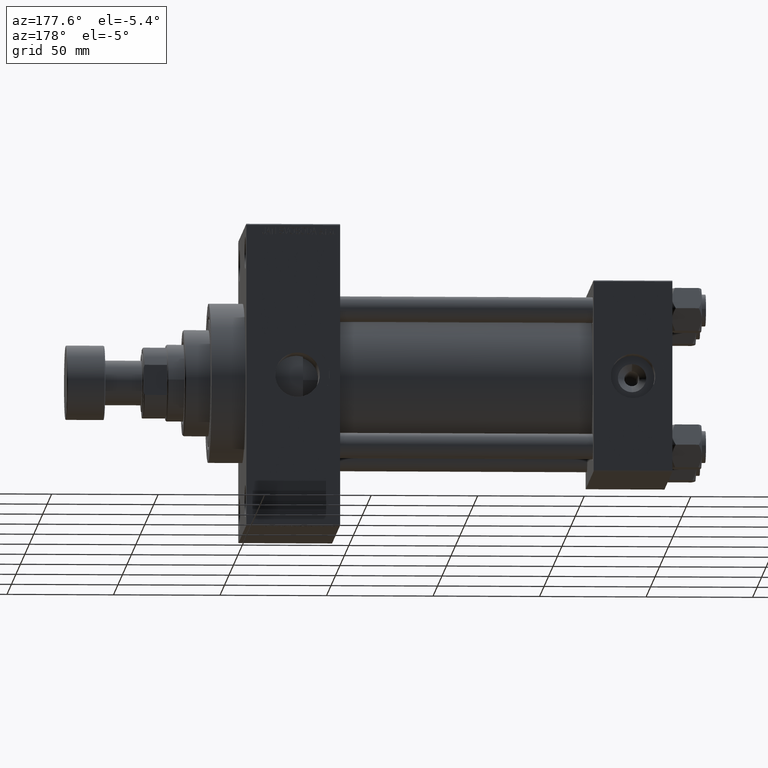
[diagram: clean part render]
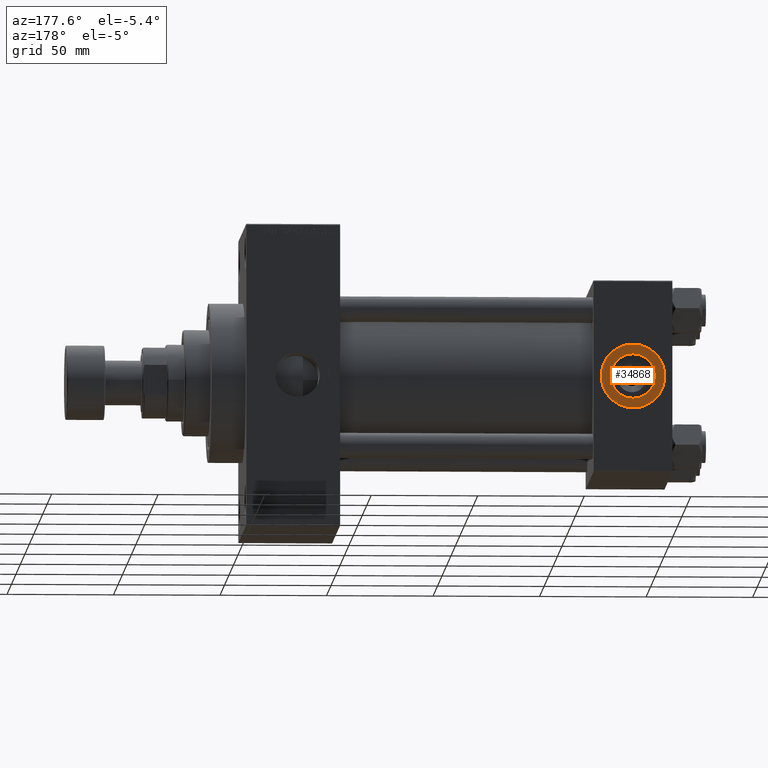
[diagram: same view with one face highlighted and labeled with its STEP entity id]
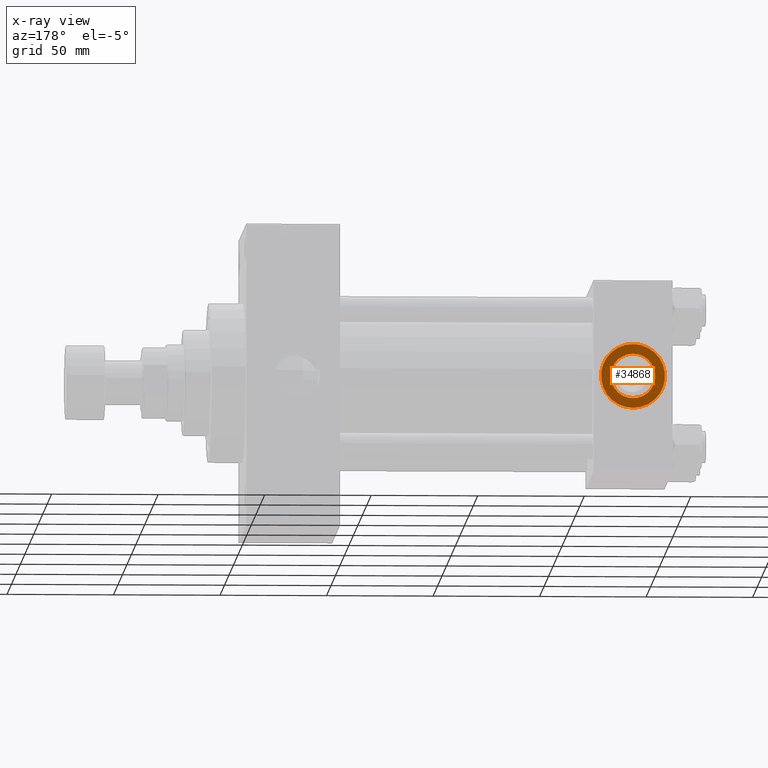
[diagram: x-ray of the same camera — body ghosted, the highlighted face saturated]
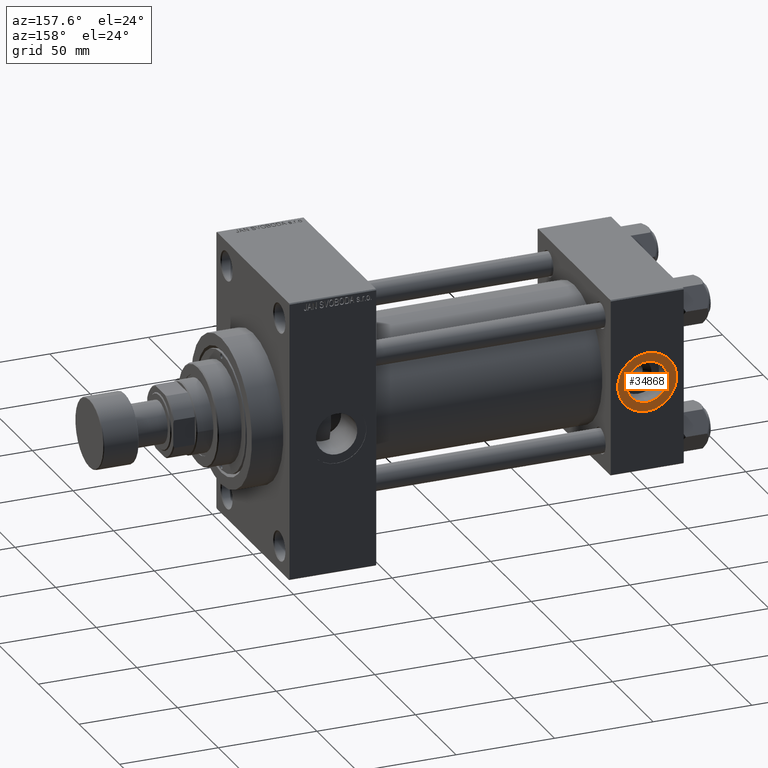
[diagram: same view with one face highlighted and labeled with its STEP entity id]
A machine part, auxiliary view. The second image highlights one B-rep face of the part: STEP entity #34868.
The next image is the same camera in x-ray: the body ghosted, the highlighted face saturated — about 0% of this face is hidden behind the body in this view.
A second angle (auxiliary view) of the same face is appended — the face is thin or edge-on in the first view.
In plain terms, the highlighted planar face has unit normal (0, 1, 0).
Its self-contained STEP definition (entity closure, byte-faithful):
#232 = CARTESIAN_POINT ( 'NONE',  ( 18.50000000000000000, 44.79999999999998295, 0.000000000000000000 ) ) ;
#311 = CARTESIAN_POINT ( 'NONE',  ( 18.50000000000000000, 44.79999999999998295, 0.000000000000000000 ) ) ;
#638 = CARTESIAN_POINT ( 'NONE',  ( 18.50000000000000000, 44.79999999999998295, -10.48000000000000043 ) ) ;
#1722 = CARTESIAN_POINT ( 'NONE',  ( 18.50000000000000000, 44.79999999999998295, 0.000000000000000000 ) ) ;
#5389 = ORIENTED_EDGE ( 'NONE', *, *, #46224, .F. ) ;
#5882 = CIRCLE ( 'NONE', #36798, 15.00000000000000178 ) ;
#6458 = DIRECTION ( 'NONE',  ( 0.000000000000000000, 1.000000000000000000, 0.000000000000000000 ) ) ;
#6754 = EDGE_CURVE ( 'NONE', #47693, #7708, #5882, .T. ) ;
#7708 = VERTEX_POINT ( 'NONE', #11416 ) ;
#11255 = DIRECTION ( 'NONE',  ( 0.000000000000000000, -0.000000000000000000, 1.000000000000000000 ) ) ;
#11416 = CARTESIAN_POINT ( 'NONE',  ( 18.50000000000000000, 44.79999999999998295, 15.00000000000000178 ) ) ;
#11736 = FACE_BOUND ( 'NONE', #27136, .T. ) ;
#12644 = DIRECTION ( 'NONE',  ( 0.000000000000000000, 0.000000000000000000, 1.000000000000000000 ) ) ;
#13027 = CARTESIAN_POINT ( 'NONE',  ( 18.50000000000000000, 44.79999999999998295, 0.000000000000000000 ) ) ;
#14477 = CIRCLE ( 'NONE', #28377, 10.48000000000000043 ) ;
#14791 = EDGE_LOOP ( 'NONE', ( #20177, #36713 ) ) ;
#15024 = DIRECTION ( 'NONE',  ( 0.000000000000000000, 1.000000000000000000, 0.000000000000000000 ) ) ;
#15122 = CARTESIAN_POINT ( 'NONE',  ( 18.50000000000000000, 44.79999999999998295, 0.000000000000000000 ) ) ;
#15347 = DIRECTION ( 'NONE',  ( 0.000000000000000000, 1.000000000000000000, 0.000000000000000000 ) ) ;
#17012 = CIRCLE ( 'NONE', #27806, 10.48000000000000043 ) ;
#18508 = CARTESIAN_POINT ( 'NONE',  ( 18.50000000000000355, 44.79999999999998295, -15.00000000000000178 ) ) ;
#20177 = ORIENTED_EDGE ( 'NONE', *, *, #47783, .T. ) ;
#27136 = EDGE_LOOP ( 'NONE', ( #5389, #45312 ) ) ;
#27806 = AXIS2_PLACEMENT_3D ( 'NONE', #232, #15024, #36811 ) ;
#28377 = AXIS2_PLACEMENT_3D ( 'NONE', #1722, #46288, #12644 ) ;
#33524 = DIRECTION ( 'NONE',  ( 0.000000000000000000, 1.000000000000000000, 0.000000000000000000 ) ) ;
#33916 = VERTEX_POINT ( 'NONE', #38401 ) ;
#34868 = ADVANCED_FACE ( 'NONE', ( #11736, #40297 ), #44904, .T. ) ;
#36713 = ORIENTED_EDGE ( 'NONE', *, *, #6754, .T. ) ;
#36722 = AXIS2_PLACEMENT_3D ( 'NONE', #15122, #33524, #11255 ) ;
#36798 = AXIS2_PLACEMENT_3D ( 'NONE', #13027, #6458, #45946 ) ;
#36811 = DIRECTION ( 'NONE',  ( 0.000000000000000000, 0.000000000000000000, 1.000000000000000000 ) ) ;
#38401 = CARTESIAN_POINT ( 'NONE',  ( 18.50000000000000000, 44.79999999999998295, 10.48000000000000043 ) ) ;
#39513 = VERTEX_POINT ( 'NONE', #638 ) ;
#39908 = EDGE_CURVE ( 'NONE', #39513, #33916, #14477, .T. ) ;
#40297 = FACE_OUTER_BOUND ( 'NONE', #14791, .T. ) ;
#40983 = CIRCLE ( 'NONE', #45603, 15.00000000000000178 ) ;
#41022 = DIRECTION ( 'NONE',  ( 0.000000000000000000, 0.000000000000000000, 1.000000000000000000 ) ) ;
#44904 = PLANE ( 'NONE',  #36722 ) ;
#45312 = ORIENTED_EDGE ( 'NONE', *, *, #39908, .F. ) ;
#45603 = AXIS2_PLACEMENT_3D ( 'NONE', #311, #15347, #41022 ) ;
#45946 = DIRECTION ( 'NONE',  ( 0.000000000000000000, 0.000000000000000000, 1.000000000000000000 ) ) ;
#46224 = EDGE_CURVE ( 'NONE', #33916, #39513, #17012, .T. ) ;
#46288 = DIRECTION ( 'NONE',  ( 0.000000000000000000, 1.000000000000000000, 0.000000000000000000 ) ) ;
#47693 = VERTEX_POINT ( 'NONE', #18508 ) ;
#47783 = EDGE_CURVE ( 'NONE', #7708, #47693, #40983, .T. ) ;